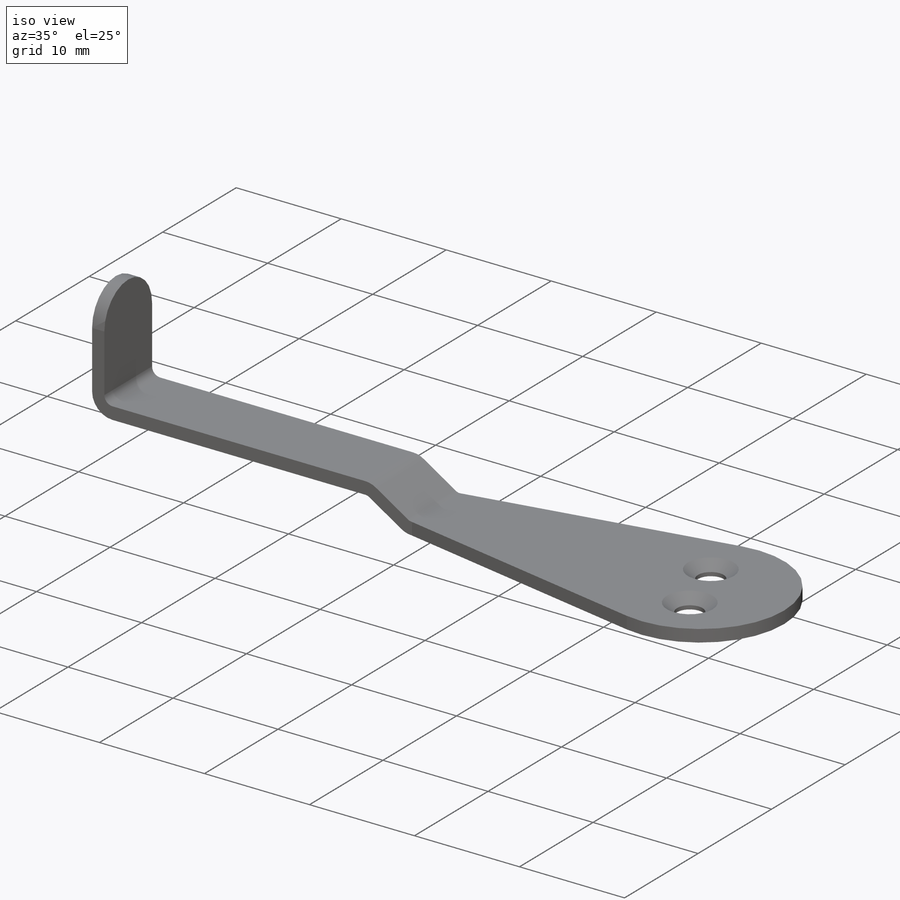
[diagram: iso view]
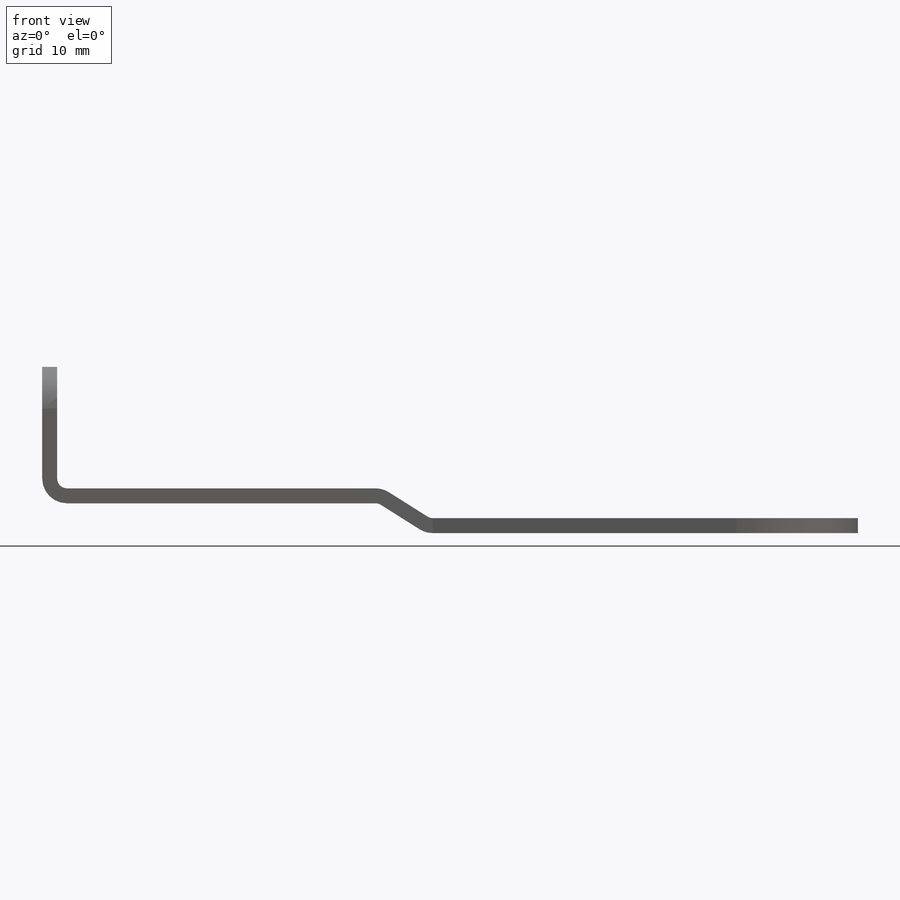
[diagram: front view]
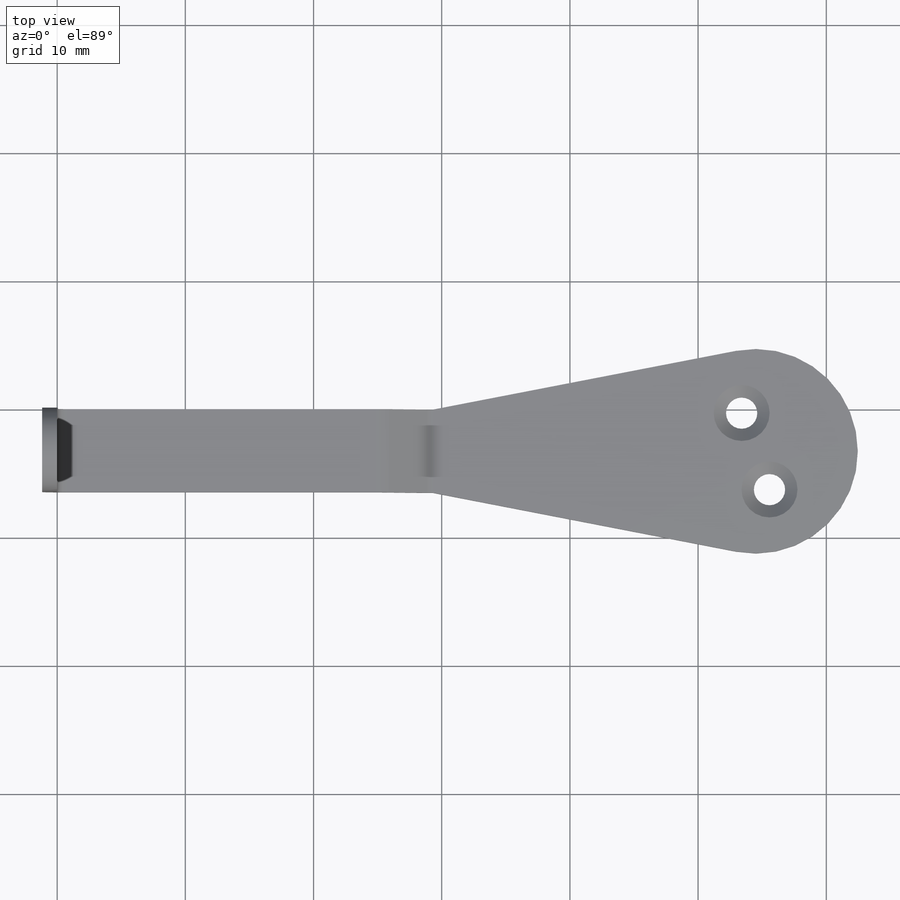
[diagram: top view]
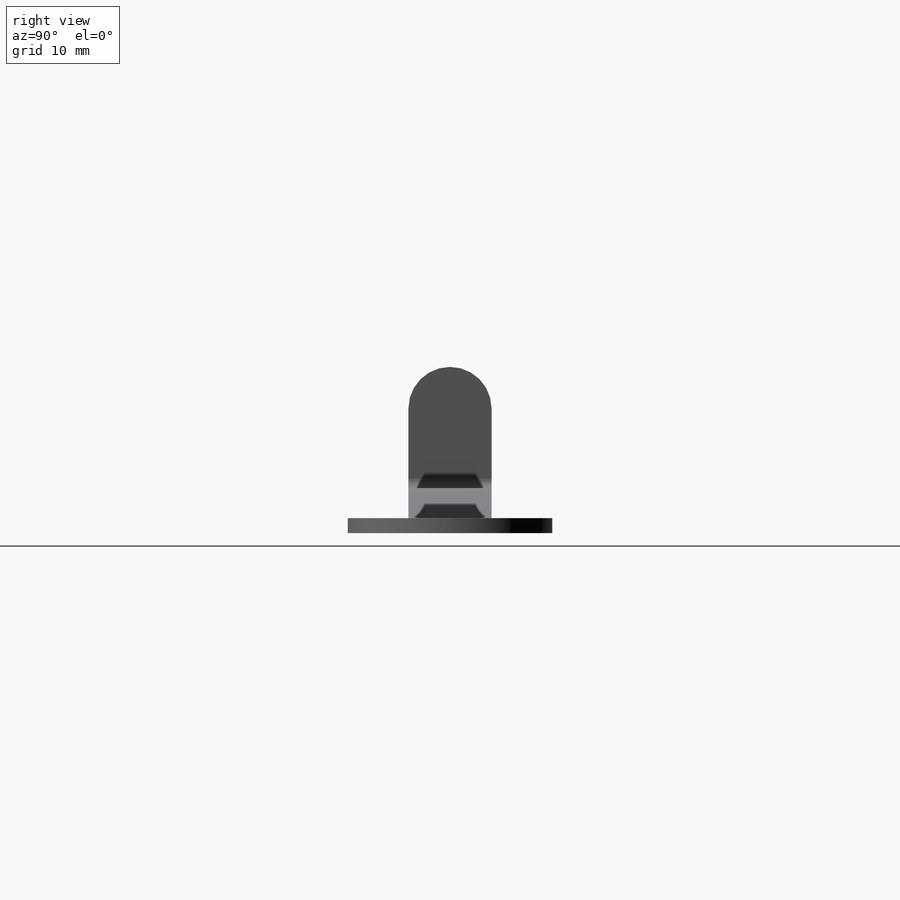
[diagram: right view]
SOLIDWORKS PART (.sldprt)
format: sldprt  version: not decoded by parser v0  size: 291,328 bytes
history: native  units: mm
features: sketch x9, sheet_metal_op x4, material x1, extrude x1, cut_extrude x1, hole x1 + 1 further entry (+16 scaffold rows collapsed; 1 parser-record rows omitted)
feature tree (35):
  scaffold x16  (default folders/planes/origin — collapsed)
  material  "Material <not specified>"
  sketch  "Sketch2"  dims[c1.D1=~42.120167mm c2.D1=25.4mm c2.D2=9.4742mm c2.D5=25.4mm c2.D3=2.3241mm c2.D4=3.683mm]
  sheet_metal_op  "Sheet-Metal1"  Thickness=1.1684mm
  sheet_metal_op  "Base-Flange1"
  sheet_metal_op  "BaseBend2"
  sheet_metal_op  "BaseBend3"
  sketch  "Sketch4"  dims[D1=15.9512mm]
  extrude  "Extrude1"  [1 undecoded]
  sketch  "Sketch5"  dims[D1=12.7mm]
  cut_extrude  "Extrude2"  [1 undecoded]
  sketch  "Sketch6"  dims[c1.D1=6.35mm c1.D2=~8.235656mm c2.D2=20.0deg]
  hole  "CSK for #2 Flat Head Machine Screw (100)1"  Diameter=2.4384mm Depth=1.1684mm
  sketch  "3DSketch1"
  sketch  "Sketch7"  dims[hole-wizard template sketch: 55 standard entries collapsed; hole parameters kept: c17.Thru Hole Depth=1.1684mm c17.Near C'Sink Dia.=4.3688mm c17.D4=~3.666174mm c17.Near C'Sink Angle=100.0deg]
  "Flat-Pattern1"
  sketch  "Bend-Lines1"
  sketch  "Flatten-<BaseBend2>1"
  sketch  "Flatten-<BaseBend3>1"
  parser-record x1  (decoder bookkeeping rows leaked as tree rows — omitted from the tree; the rows remain in map.json)
decode coverage: 7 of 16 modeling features carry decoded parameters; 1 rows unclassified (native names shown)
note: ~ marks probable driven/reference dimensions
note: 2 parameter values undecoded
note: suppression state not decoded; provenance and decode notes live in map.json
